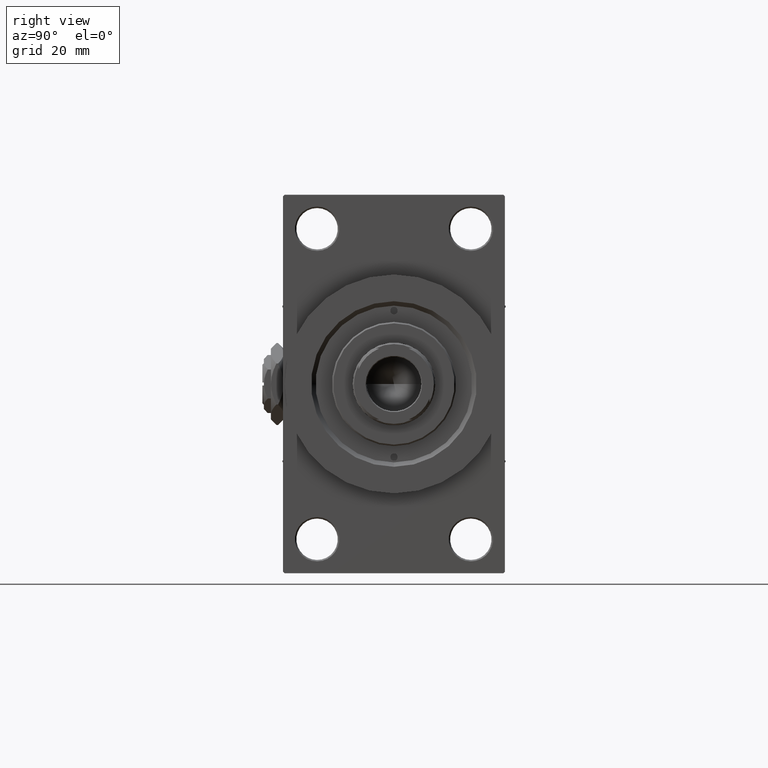
[diagram: clean part render]
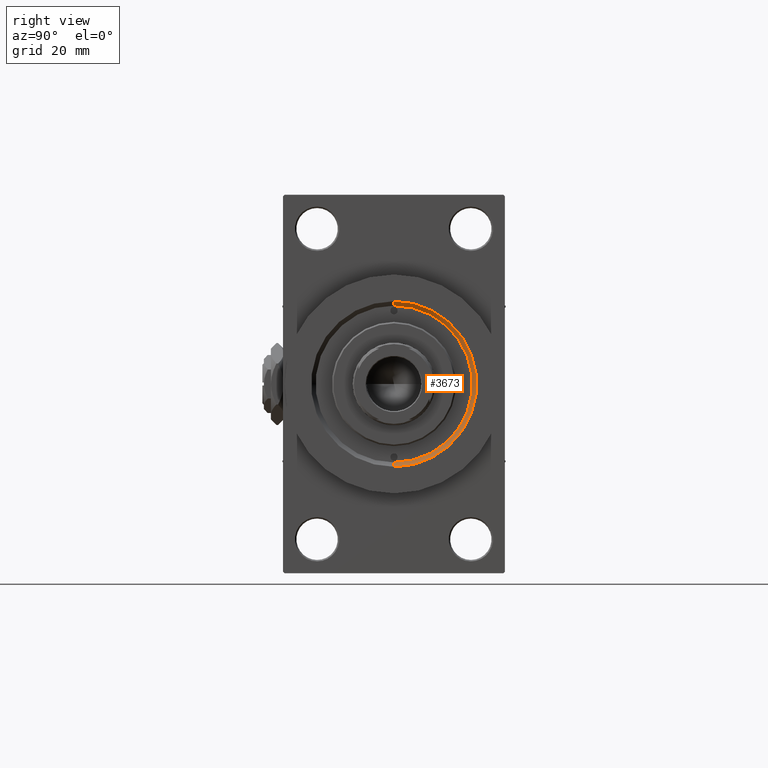
[diagram: same view with one face highlighted and labeled with its STEP entity id]
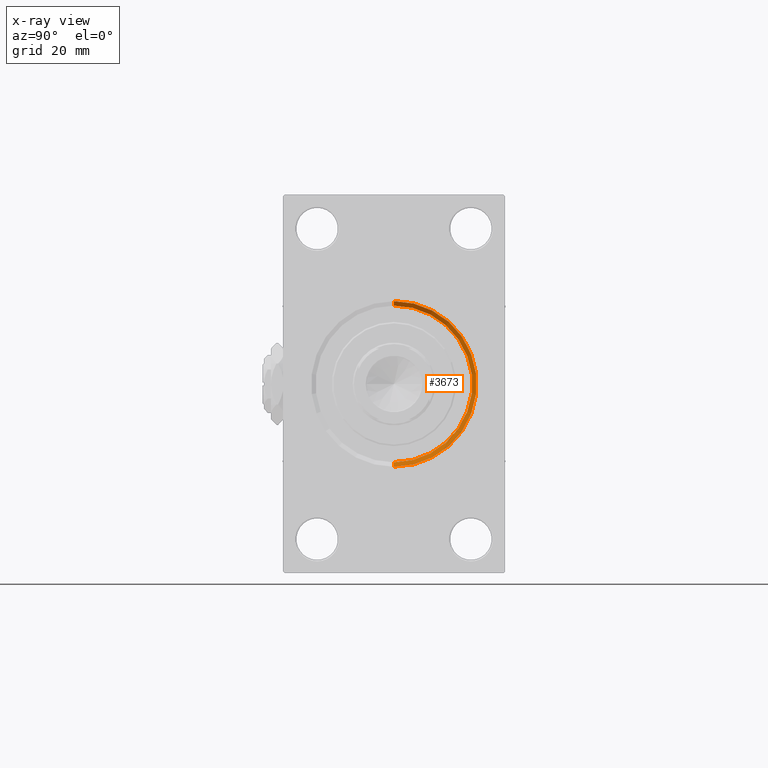
[diagram: x-ray of the same camera — body ghosted, the highlighted face saturated]
A machine part, right view. The second image highlights one B-rep face of the part: STEP entity #3673.
The next image is the same camera in x-ray: the body ghosted, the highlighted face saturated — about 0% of this face is hidden behind the body in this view.
In plain terms, the highlighted conical surface has half-angle 45 deg.
Its self-contained STEP definition (entity closure, byte-faithful):
#1034 = CARTESIAN_POINT ( 'NONE',  ( 152.5000000000000853, 3.245314017740486554E-15, 26.50000000000000355 ) ) ;
#1155 = DIRECTION ( 'NONE',  ( 0.000000000000000000, 0.000000000000000000, -1.000000000000000000 ) ) ;
#2194 = LINE ( 'NONE', #4944, #17591 ) ;
#3010 = AXIS2_PLACEMENT_3D ( 'NONE', #49302, #31451, #16173 ) ;
#3465 = EDGE_LOOP ( 'NONE', ( #12428, #14042, #30805, #27611 ) ) ;
#3673 = ADVANCED_FACE ( 'NONE', ( #31164 ), #45035, .F. ) ;
#3896 = DIRECTION ( 'NONE',  ( 1.000000000000000000, 0.000000000000000000, 0.000000000000000000 ) ) ;
#4944 = CARTESIAN_POINT ( 'NONE',  ( 152.5000000000000853, 0.000000000000000000, -26.50000000000000355 ) ) ;
#5895 = VERTEX_POINT ( 'NONE', #13257 ) ;
#7460 = EDGE_CURVE ( 'NONE', #5895, #35490, #43559, .T. ) ;
#8613 = EDGE_CURVE ( 'NONE', #35490, #47697, #10589, .T. ) ;
#10589 = LINE ( 'NONE', #25364, #33218 ) ;
#12428 = ORIENTED_EDGE ( 'NONE', *, *, #8613, .F. ) ;
#13257 = CARTESIAN_POINT ( 'NONE',  ( 152.5000000000000853, 0.000000000000000000, -26.50000000000000355 ) ) ;
#14042 = ORIENTED_EDGE ( 'NONE', *, *, #7460, .F. ) ;
#15436 = AXIS2_PLACEMENT_3D ( 'NONE', #34674, #3896, #27643 ) ;
#16173 = DIRECTION ( 'NONE',  ( 0.000000000000000000, 0.000000000000000000, -1.000000000000000000 ) ) ;
#17591 = VECTOR ( 'NONE', #20194, 1000.000000000000114 ) ;
#20194 = DIRECTION ( 'NONE',  ( 0.7071067811865491270, 0.000000000000000000, -0.7071067811865459074 ) ) ;
#20908 = DIRECTION ( 'NONE',  ( 1.000000000000000000, 0.000000000000000000, 0.000000000000000000 ) ) ;
#21272 = EDGE_CURVE ( 'NONE', #47697, #35361, #33377, .T. ) ;
#24156 = CARTESIAN_POINT ( 'NONE',  ( 154.0000000000000284, 0.000000000000000000, -27.99999999999994316 ) ) ;
#25364 = CARTESIAN_POINT ( 'NONE',  ( 152.5000000000000853, 3.245314017740486554E-15, 26.50000000000000355 ) ) ;
#25981 = AXIS2_PLACEMENT_3D ( 'NONE', #36443, #20908, #1155 ) ;
#27119 = CARTESIAN_POINT ( 'NONE',  ( 154.0000000000000284, 3.429011037612582176E-15, 27.99999999999994316 ) ) ;
#27611 = ORIENTED_EDGE ( 'NONE', *, *, #21272, .F. ) ;
#27643 = DIRECTION ( 'NONE',  ( 0.000000000000000000, 0.000000000000000000, -1.000000000000000000 ) ) ;
#30805 = ORIENTED_EDGE ( 'NONE', *, *, #31307, .T. ) ;
#31164 = FACE_OUTER_BOUND ( 'NONE', #3465, .T. ) ;
#31307 = EDGE_CURVE ( 'NONE', #5895, #35361, #2194, .T. ) ;
#31451 = DIRECTION ( 'NONE',  ( -1.000000000000000000, -0.000000000000000000, -0.000000000000000000 ) ) ;
#33218 = VECTOR ( 'NONE', #37137, 1000.000000000000114 ) ;
#33377 = CIRCLE ( 'NONE', #3010, 27.99999999999994316 ) ;
#34674 = CARTESIAN_POINT ( 'NONE',  ( 152.5000000000000853, 0.000000000000000000, 0.000000000000000000 ) ) ;
#35361 = VERTEX_POINT ( 'NONE', #24156 ) ;
#35490 = VERTEX_POINT ( 'NONE', #1034 ) ;
#36443 = CARTESIAN_POINT ( 'NONE',  ( 152.5000000000000853, 0.000000000000000000, 0.000000000000000000 ) ) ;
#37137 = DIRECTION ( 'NONE',  ( 0.7071067811865491270, 8.659560562354911904E-17, 0.7071067811865459074 ) ) ;
#43559 = CIRCLE ( 'NONE', #25981, 26.50000000000000355 ) ;
#45035 = CONICAL_SURFACE ( 'NONE', #15436, 26.50000000000000355, 0.7853981633974459475 ) ;
#47697 = VERTEX_POINT ( 'NONE', #27119 ) ;
#49302 = CARTESIAN_POINT ( 'NONE',  ( 154.0000000000000284, 0.000000000000000000, 0.000000000000000000 ) ) ;